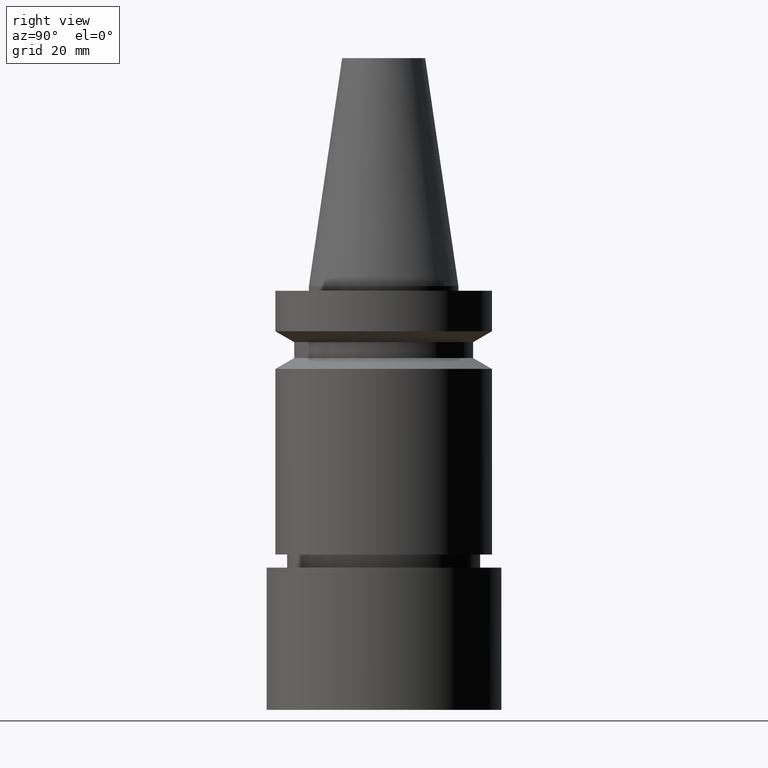
[diagram: clean part render]
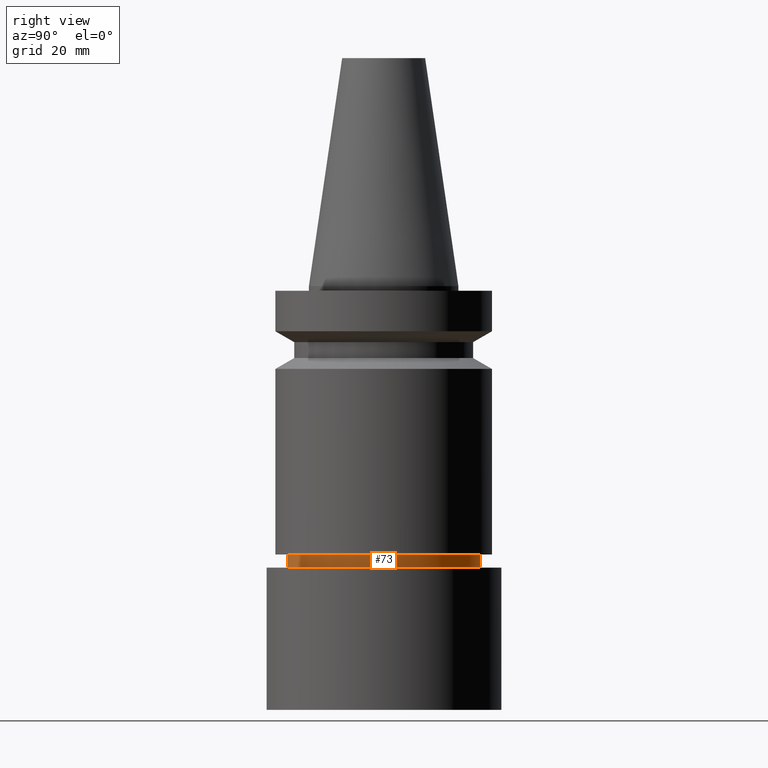
[diagram: same view with one face highlighted and labeled with its STEP entity id]
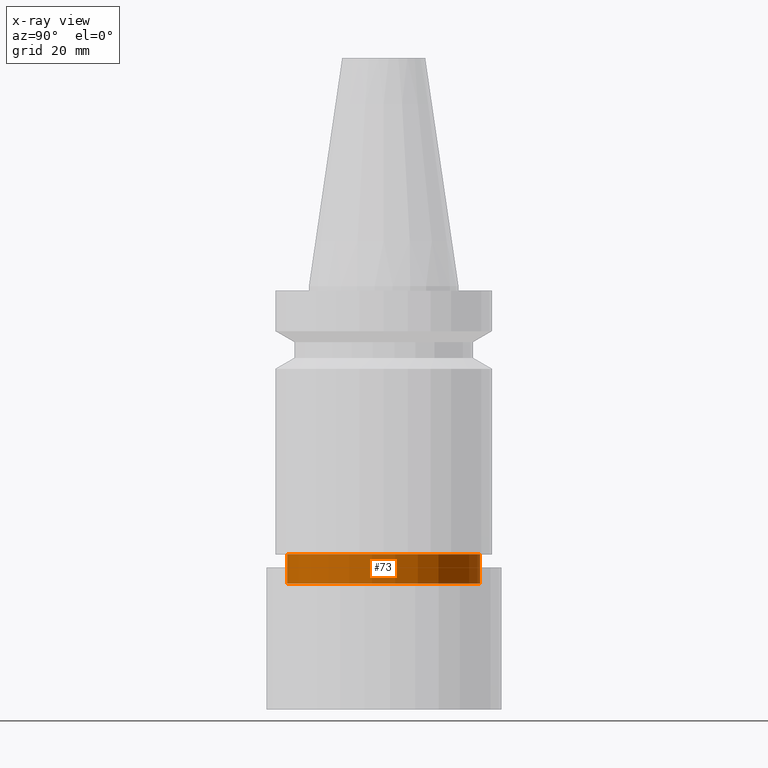
[diagram: x-ray of the same camera — body ghosted, the highlighted face saturated]
A machine part, right view. The second image highlights one B-rep face of the part: STEP entity #73.
The next image is the same camera in x-ray: the body ghosted, the highlighted face saturated — about 0% of this face is hidden behind the body in this view.
In plain terms, the highlighted cylindrical surface (bore or boss wall) has radius 20.5 mm, axis along (0, 0, -1).
Its self-contained STEP definition (entity closure, byte-faithful):
#73=ADVANCED_FACE('Unnamed[1]',(#186,#187),#188,.T.);
#131=EDGE_CURVE('Unnamed[1]',#277,#277,#278,.T.);
#147=EDGE_CURVE('Unnamed[1]',#301,#301,#302,.T.);
#186=FACE_BOUND('',#339,.T.);
#187=FACE_BOUND('',#340,.T.);
#188=CYLINDRICAL_SURFACE('',#341,20.4999999999961);
#277=VERTEX_POINT('',#453);
#278=CIRCLE('',#454,20.4999999999911);
#301=VERTEX_POINT('',#484);
#302=CIRCLE('',#485,20.5000000000012);
#339=EDGE_LOOP('',(#512));
#340=EDGE_LOOP('',(#513));
#341=AXIS2_PLACEMENT_3D('',#514,#515,#516);
#453=CARTESIAN_POINT('',(3.49025302591329E-015,20.4999999999911,-57.0001575694044));
#454=AXIS2_PLACEMENT_3D('',#616,#617,#618);
#484=CARTESIAN_POINT('',(3.87058698165691E-015,20.5000000000012,-63.211482434801));
#485=AXIS2_PLACEMENT_3D('',#642,#643,#644);
#512=ORIENTED_EDGE('',*,*,#147,.F.);
#513=ORIENTED_EDGE('',*,*,#131,.T.);
#514=CARTESIAN_POINT('',(3.6804200037851E-015,7.3608400075702E-015,-60.1058200021027));
#515=DIRECTION('',(6.12323399573677E-017,1.22464679914735E-016,-1.0));
#516=DIRECTION('',(-1.23259516440783E-032,1.0,1.22464679914735E-016));
#616=CARTESIAN_POINT('',(3.49025302591329E-015,6.98050605182658E-015,-57.0001575694044));
#617=DIRECTION('',(6.12323399573677E-017,1.22464679914735E-016,-1.0));
#618=DIRECTION('',(-1.23259516440783E-032,1.0,1.22464679914735E-016));
#642=CARTESIAN_POINT('',(3.87058698165691E-015,7.74117396331382E-015,-63.211482434801));
#643=DIRECTION('',(6.12323399573677E-017,1.22464679914735E-016,-1.0));
#644=DIRECTION('',(-1.23259516440783E-032,1.0,1.22464679914735E-016));